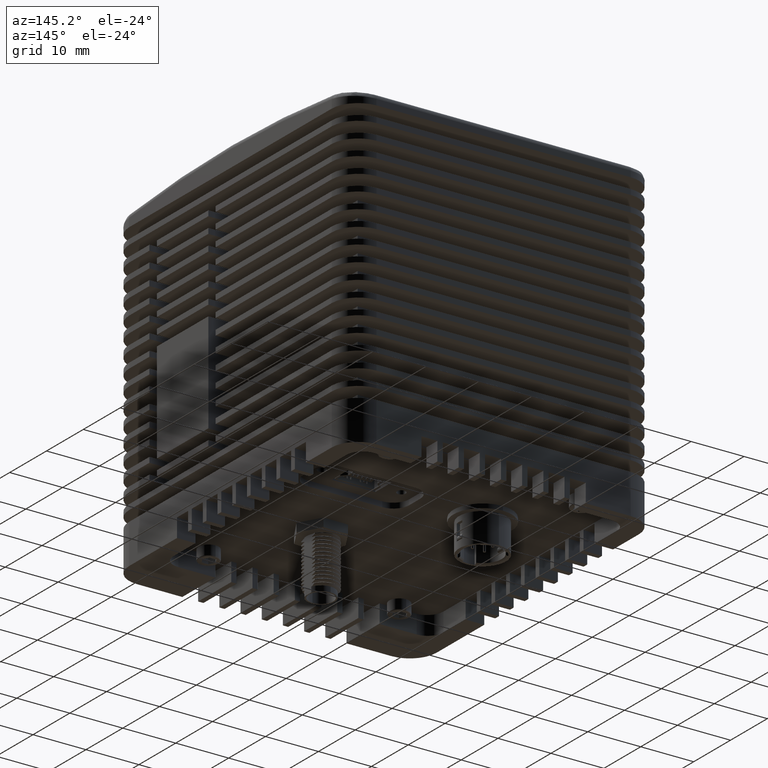
[diagram: clean part render]
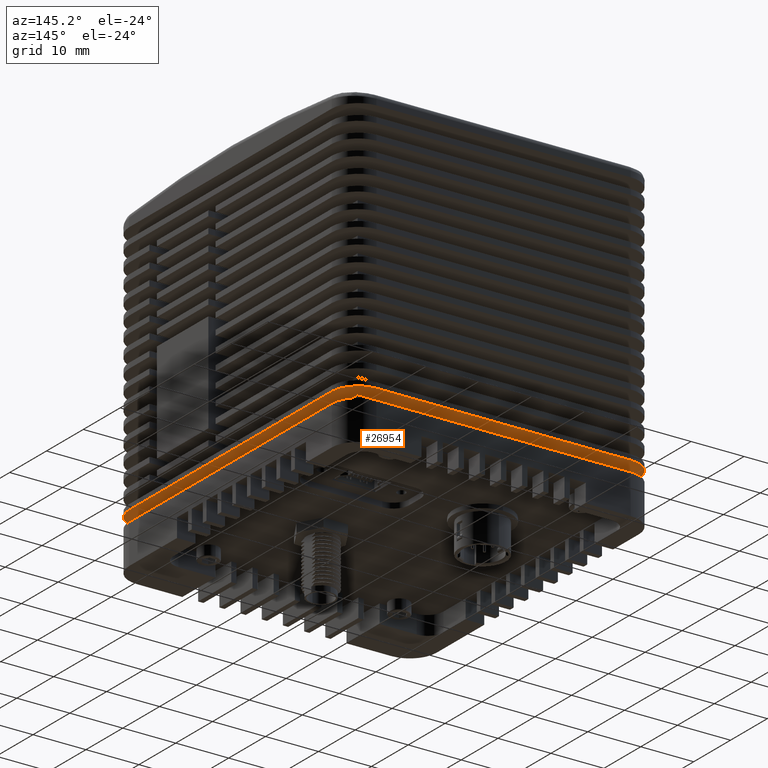
[diagram: same view with one face highlighted and labeled with its STEP entity id]
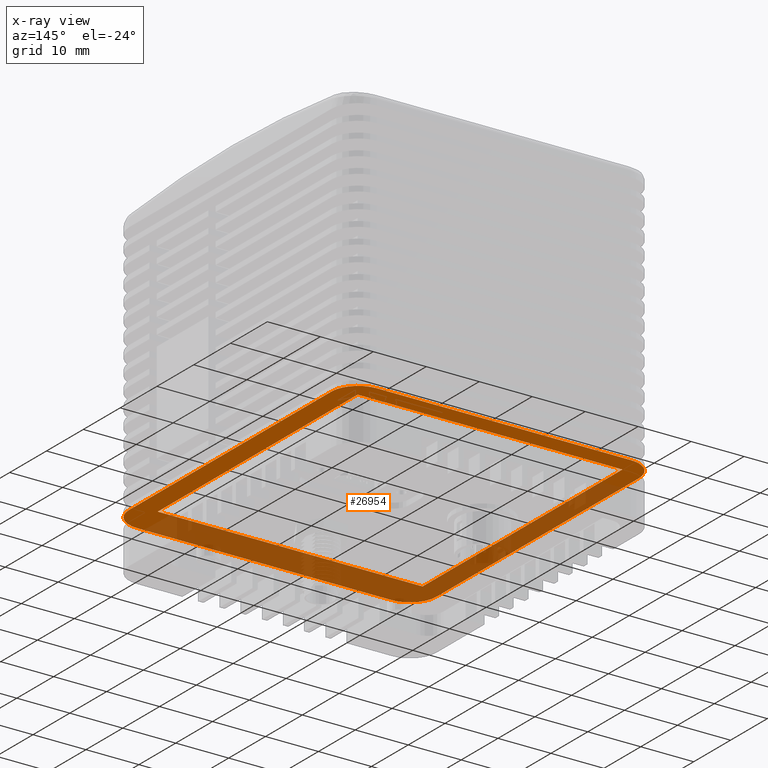
[diagram: x-ray of the same camera — body ghosted, the highlighted face saturated]
A machine part, auxiliary view. The second image highlights one B-rep face of the part: STEP entity #26954.
The next image is the same camera in x-ray: the body ghosted, the highlighted face saturated — about 53% of this face is hidden behind the body in this view.
In plain terms, the highlighted planar face has unit normal (0, 0, 1).
Its self-contained STEP definition (entity closure, byte-faithful):
#182 = ORIENTED_EDGE ( 'NONE', *, *, #29313, .F. ) ;
#791 = VECTOR ( 'NONE', #29937, 1000.000000000000000 ) ;
#977 = ORIENTED_EDGE ( 'NONE', *, *, #8016, .F. ) ;
#1004 = DIRECTION ( 'NONE',  ( -1.000000000000000000, 0.0000000000000000000, 0.0000000000000000000 ) ) ;
#1292 = DIRECTION ( 'NONE',  ( 1.000000000000000000, -0.0000000000000000000, -0.0000000000000000000 ) ) ;
#2339 = CARTESIAN_POINT ( 'NONE',  ( 29.00000000000000400, 27.50000000000000000, 42.00000000000000000 ) ) ;
#2784 = CARTESIAN_POINT ( 'NONE',  ( 24.00000000000000000, 32.50000000000000000, 42.00000000000000000 ) ) ;
#2872 = LINE ( 'NONE', #47942, #29751 ) ;
#3225 = CARTESIAN_POINT ( 'NONE',  ( -25.00000000000000400, 28.80000000000000100, 42.00000000000000000 ) ) ;
#4262 = ORIENTED_EDGE ( 'NONE', *, *, #55662, .F. ) ;
#4433 = CARTESIAN_POINT ( 'NONE',  ( 24.00000000000001400, -32.50000000000000000, 42.00000000000000000 ) ) ;
#4881 = CARTESIAN_POINT ( 'NONE',  ( -23.99999999999998900, -27.50000000000000000, 42.00000000000000000 ) ) ;
#4949 = ORIENTED_EDGE ( 'NONE', *, *, #40374, .F. ) ;
#5951 = VERTEX_POINT ( 'NONE', #25879 ) ;
#6261 = CARTESIAN_POINT ( 'NONE',  ( -23.99999999999998900, -27.50000000000000000, 42.00000000000000000 ) ) ;
#6316 = LINE ( 'NONE', #22825, #61599 ) ;
#7125 = CARTESIAN_POINT ( 'NONE',  ( -23.99999999999998900, -32.50000000000000000, 42.00000000000000000 ) ) ;
#8016 = EDGE_CURVE ( 'NONE', #65691, #16966, #29350, .T. ) ;
#9436 = CARTESIAN_POINT ( 'NONE',  ( -28.99999999999998900, -27.50000000000000000, 42.00000000000000000 ) ) ;
#10303 = DIRECTION ( 'NONE',  ( -1.000000000000000000, 0.0000000000000000000, 0.0000000000000000000 ) ) ;
#10630 = VERTEX_POINT ( 'NONE', #7125 ) ;
#11516 = EDGE_CURVE ( 'NONE', #69129, #39655, #43182, .T. ) ;
#11687 = PLANE ( 'NONE',  #34877 ) ;
#13537 = CARTESIAN_POINT ( 'NONE',  ( 25.00000000000001800, 28.80000000000000100, 42.00000000000000000 ) ) ;
#13648 = VECTOR ( 'NONE', #20423, 1000.000000000000000 ) ;
#14226 = ORIENTED_EDGE ( 'NONE', *, *, #68980, .F. ) ;
#15454 = CARTESIAN_POINT ( 'NONE',  ( -28.99999999999999300, 27.50000000000000000, 42.00000000000000000 ) ) ;
#15923 = FACE_BOUND ( 'NONE', #65568, .T. ) ;
#16426 = ORIENTED_EDGE ( 'NONE', *, *, #39519, .F. ) ;
#16966 = VERTEX_POINT ( 'NONE', #3225 ) ;
#17101 = DIRECTION ( 'NONE',  ( -1.000000000000000000, 0.0000000000000000000, -0.0000000000000000000 ) ) ;
#17416 = ORIENTED_EDGE ( 'NONE', *, *, #26818, .F. ) ;
#17576 = FACE_OUTER_BOUND ( 'NONE', #65022, .T. ) ;
#19045 = VECTOR ( 'NONE', #34831, 1000.000000000000000 ) ;
#20423 = DIRECTION ( 'NONE',  ( -1.000000000000000000, 0.0000000000000000000, 0.0000000000000000000 ) ) ;
#20704 = LINE ( 'NONE', #56051, #19045 ) ;
#21107 = DIRECTION ( 'NONE',  ( 0.0000000000000000000, 0.0000000000000000000, -1.000000000000000000 ) ) ;
#21585 = AXIS2_PLACEMENT_3D ( 'NONE', #4881, #42385, #10303 ) ;
#22201 = DIRECTION ( 'NONE',  ( 0.0000000000000000000, 0.0000000000000000000, -1.000000000000000000 ) ) ;
#22618 = VECTOR ( 'NONE', #52237, 1000.000000000000000 ) ;
#22825 = CARTESIAN_POINT ( 'NONE',  ( 28.99999999999999600, -21.00000000000000000, 42.00000000000000000 ) ) ;
#24314 = VERTEX_POINT ( 'NONE', #29559 ) ;
#25879 = CARTESIAN_POINT ( 'NONE',  ( -23.99999999999999600, 32.50000000000000000, 42.00000000000000000 ) ) ;
#26818 = EDGE_CURVE ( 'NONE', #68396, #24314, #51036, .T. ) ;
#26954 = ADVANCED_FACE ( 'NONE', ( #17576, #15923 ), #11687, .F. ) ;
#27902 = LINE ( 'NONE', #4433, #13648 ) ;
#28035 = CARTESIAN_POINT ( 'NONE',  ( 25.00000000000001800, -25.49999999999999600, 42.00000000000000000 ) ) ;
#28970 = EDGE_CURVE ( 'NONE', #16966, #69129, #40887, .T. ) ;
#29313 = EDGE_CURVE ( 'NONE', #10630, #57701, #68437, .T. ) ;
#29350 = LINE ( 'NONE', #13537, #791 ) ;
#29559 = CARTESIAN_POINT ( 'NONE',  ( 24.00000000000001400, -32.50000000000000000, 42.00000000000000000 ) ) ;
#29579 = ORIENTED_EDGE ( 'NONE', *, *, #53607, .F. ) ;
#29751 = VECTOR ( 'NONE', #53270, 1000.000000000000000 ) ;
#29937 = DIRECTION ( 'NONE',  ( -1.000000000000000000, 0.0000000000000000000, 0.0000000000000000000 ) ) ;
#33121 = DIRECTION ( 'NONE',  ( 0.0000000000000000000, 0.0000000000000000000, -1.000000000000000000 ) ) ;
#33619 = ORIENTED_EDGE ( 'NONE', *, *, #11516, .F. ) ;
#34831 = DIRECTION ( 'NONE',  ( 1.000000000000000000, 0.0000000000000000000, 0.0000000000000000000 ) ) ;
#34877 = AXIS2_PLACEMENT_3D ( 'NONE', #6261, #59576, #17101 ) ;
#35759 = VERTEX_POINT ( 'NONE', #2784 ) ;
#37304 = CARTESIAN_POINT ( 'NONE',  ( -28.99999999999998900, -27.50000000000000000, 42.00000000000000000 ) ) ;
#38504 = LINE ( 'NONE', #9436, #22618 ) ;
#39519 = EDGE_CURVE ( 'NONE', #24314, #10630, #27902, .T. ) ;
#39655 = VERTEX_POINT ( 'NONE', #53557 ) ;
#40374 = EDGE_CURVE ( 'NONE', #63837, #5951, #41192, .T. ) ;
#40887 = LINE ( 'NONE', #55690, #67624 ) ;
#41192 = CIRCLE ( 'NONE', #46679, 5.000000000000000900 ) ;
#42385 = DIRECTION ( 'NONE',  ( 0.0000000000000000000, 0.0000000000000000000, -1.000000000000000000 ) ) ;
#43182 = LINE ( 'NONE', #28035, #68225 ) ;
#43231 = AXIS2_PLACEMENT_3D ( 'NONE', #65113, #33121, #1004 ) ;
#44365 = DIRECTION ( 'NONE',  ( 3.202566417187952000E-015, -1.000000000000000000, 0.0000000000000000000 ) ) ;
#46679 = AXIS2_PLACEMENT_3D ( 'NONE', #54182, #22201, #59533 ) ;
#47942 = CARTESIAN_POINT ( 'NONE',  ( 25.00000000000001800, -20.99999999999999300, 42.00000000000000000 ) ) ;
#50169 = CARTESIAN_POINT ( 'NONE',  ( -25.00000000000000400, -25.49999999999999600, 42.00000000000000000 ) ) ;
#50361 = EDGE_CURVE ( 'NONE', #39655, #65691, #2872, .T. ) ;
#51036 = CIRCLE ( 'NONE', #57651, 5.000000000000004400 ) ;
#52237 = DIRECTION ( 'NONE',  ( 0.0000000000000000000, 1.000000000000000000, 0.0000000000000000000 ) ) ;
#53077 = CARTESIAN_POINT ( 'NONE',  ( 24.00000000000001400, -27.50000000000000000, 42.00000000000000000 ) ) ;
#53270 = DIRECTION ( 'NONE',  ( -0.0000000000000000000, 1.000000000000000000, -0.0000000000000000000 ) ) ;
#53557 = CARTESIAN_POINT ( 'NONE',  ( 25.00000000000001800, -25.49999999999999600, 42.00000000000000000 ) ) ;
#53607 = EDGE_CURVE ( 'NONE', #57701, #63837, #38504, .T. ) ;
#54078 = VERTEX_POINT ( 'NONE', #2339 ) ;
#54182 = CARTESIAN_POINT ( 'NONE',  ( -23.99999999999999600, 27.50000000000000000, 42.00000000000000000 ) ) ;
#55115 = CARTESIAN_POINT ( 'NONE',  ( 29.00000000000001800, -27.50000000000000000, 42.00000000000000000 ) ) ;
#55662 = EDGE_CURVE ( 'NONE', #5951, #35759, #20704, .T. ) ;
#55690 = CARTESIAN_POINT ( 'NONE',  ( -25.00000000000000400, -25.49999999999999600, 42.00000000000000000 ) ) ;
#56051 = CARTESIAN_POINT ( 'NONE',  ( -23.99999999999999600, 32.50000000000000000, 42.00000000000000000 ) ) ;
#56274 = EDGE_CURVE ( 'NONE', #54078, #68396, #6316, .T. ) ;
#57651 = AXIS2_PLACEMENT_3D ( 'NONE', #53077, #21107, #58457 ) ;
#57701 = VERTEX_POINT ( 'NONE', #37304 ) ;
#58457 = DIRECTION ( 'NONE',  ( -1.000000000000000000, 0.0000000000000000000, 0.0000000000000000000 ) ) ;
#59533 = DIRECTION ( 'NONE',  ( -1.000000000000000000, 0.0000000000000000000, 0.0000000000000000000 ) ) ;
#59576 = DIRECTION ( 'NONE',  ( 0.0000000000000000000, 0.0000000000000000000, -1.000000000000000000 ) ) ;
#61599 = VECTOR ( 'NONE', #44365, 1000.000000000000000 ) ;
#63196 = ORIENTED_EDGE ( 'NONE', *, *, #56274, .F. ) ;
#63768 = CIRCLE ( 'NONE', #43231, 5.000000000000004400 ) ;
#63837 = VERTEX_POINT ( 'NONE', #15454 ) ;
#65022 = EDGE_LOOP ( 'NONE', ( #63196, #14226, #4262, #4949, #29579, #182, #16426, #17416 ) ) ;
#65113 = CARTESIAN_POINT ( 'NONE',  ( 24.00000000000000000, 27.50000000000000000, 42.00000000000000000 ) ) ;
#65568 = EDGE_LOOP ( 'NONE', ( #977, #65938, #33619, #66712 ) ) ;
#65691 = VERTEX_POINT ( 'NONE', #67951 ) ;
#65938 = ORIENTED_EDGE ( 'NONE', *, *, #50361, .F. ) ;
#66473 = DIRECTION ( 'NONE',  ( -0.0000000000000000000, -1.000000000000000000, -0.0000000000000000000 ) ) ;
#66712 = ORIENTED_EDGE ( 'NONE', *, *, #28970, .F. ) ;
#67624 = VECTOR ( 'NONE', #66473, 1000.000000000000000 ) ;
#67951 = CARTESIAN_POINT ( 'NONE',  ( 25.00000000000001800, 28.80000000000000100, 42.00000000000000000 ) ) ;
#68225 = VECTOR ( 'NONE', #1292, 1000.000000000000000 ) ;
#68396 = VERTEX_POINT ( 'NONE', #55115 ) ;
#68437 = CIRCLE ( 'NONE', #21585, 5.000000000000000900 ) ;
#68980 = EDGE_CURVE ( 'NONE', #35759, #54078, #63768, .T. ) ;
#69129 = VERTEX_POINT ( 'NONE', #50169 ) ;